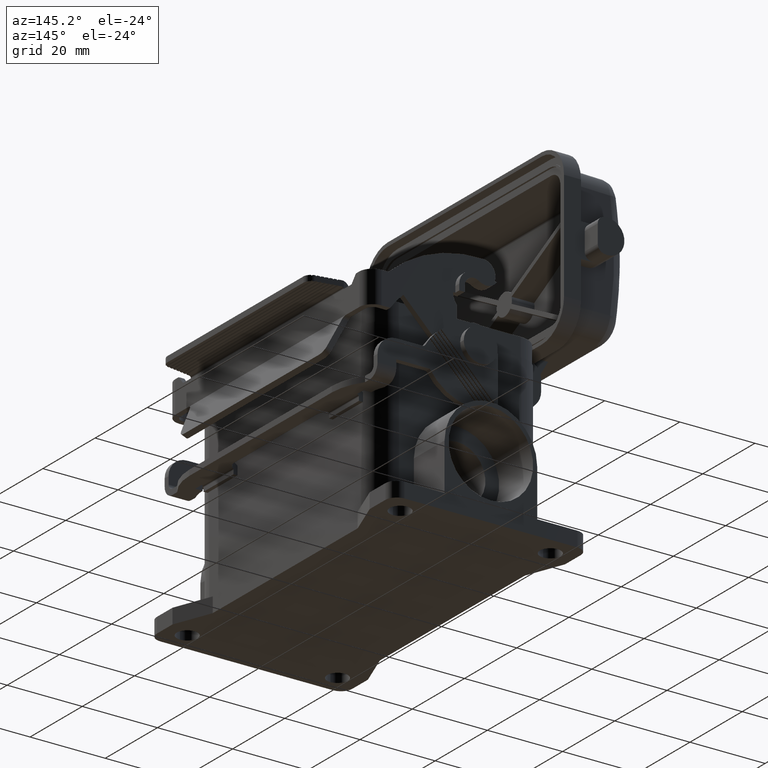
[diagram: clean part render]
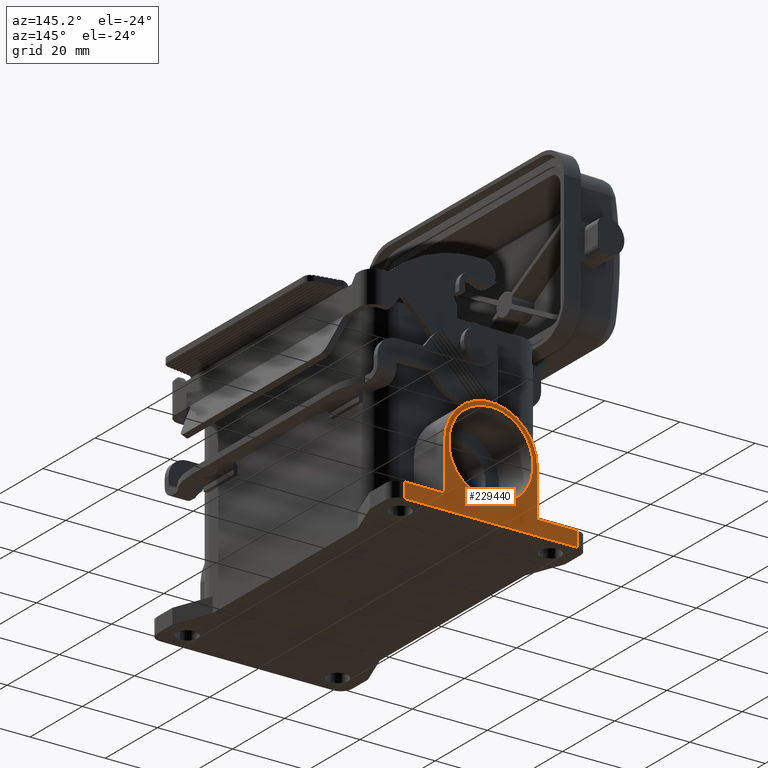
[diagram: same view with one face highlighted and labeled with its STEP entity id]
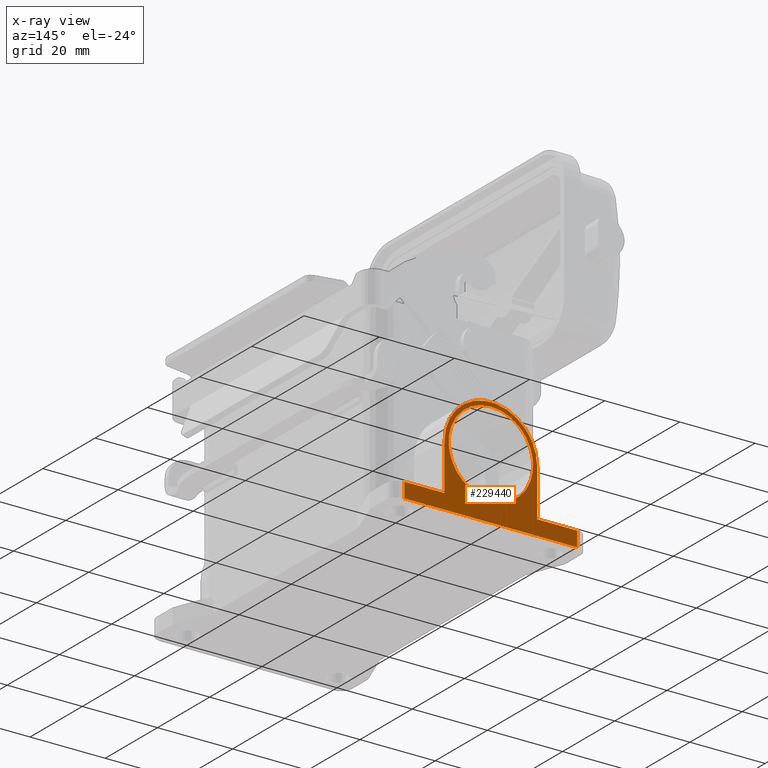
[diagram: x-ray of the same camera — body ghosted, the highlighted face saturated]
A machine part, auxiliary view. The second image highlights one B-rep face of the part: STEP entity #229440.
The next image is the same camera in x-ray: the body ghosted, the highlighted face saturated — about 0% of this face is hidden behind the body in this view.
In plain terms, the highlighted planar face has unit normal (0, 1, 0).
Its self-contained STEP definition (entity closure, byte-faithful):
#28910=CARTESIAN_POINT('',(52.5,23.,-40.));
#28920=VERTEX_POINT('',#28910);
#29100=CARTESIAN_POINT('',(52.5,23.,-44.));
#29110=VERTEX_POINT('',#29100);
#29140=CARTESIAN_POINT('',(52.5,23.,0.));
#29150=DIRECTION('',(0.,-0.,1.));
#29160=VECTOR('',#29150,1.);
#29170=LINE('',#29140,#29160);
#29180=EDGE_CURVE('',#29110,#28920,#29170,.T.);
#46790=CARTESIAN_POINT('',(52.5,-23.,-44.));
#46800=VERTEX_POINT('',#46790);
#46830=CARTESIAN_POINT('',(52.5,26.,-44.));
#46840=DIRECTION('',(0.,-1.,0.));
#46850=VECTOR('',#46840,52.);
#46860=LINE('',#46830,#46850);
#46870=EDGE_CURVE('',#29110,#46800,#46860,.T.);
#178470=CARTESIAN_POINT('',(52.5,-23.,-40.));
#178480=VERTEX_POINT('',#178470);
#178510=CARTESIAN_POINT('',(52.5,-23.,0.));
#178520=DIRECTION('',(-0.,0.,1.));
#178530=VECTOR('',#178520,1.);
#178540=LINE('',#178510,#178530);
#178550=EDGE_CURVE('',#46800,#178480,#178540,.T.);
#228800=CARTESIAN_POINT('',(52.5,26.,-44.));
#228810=DIRECTION('',(1.,-0.,0.));
#228820=DIRECTION('',(0.,0.,-1.));
#228830=AXIS2_PLACEMENT_3D('',#228800,#228810,#228820);
#228840=PLANE('',#228830);
#228850=CARTESIAN_POINT('',(52.5,0.,-27.42));
#228860=DIRECTION('',(1.,0.,0.));
#228870=DIRECTION('',(0.,0.,1.));
#228880=AXIS2_PLACEMENT_3D('',#228850,#228860,#228870);
#228890=CIRCLE('',#228880,11.25);
#228900=CARTESIAN_POINT('',(52.5,0.,-16.17));
#228910=VERTEX_POINT('',#228900);
#228920=CARTESIAN_POINT('',(52.5,-1.37772764904077E-15,-38.67));
#228930=VERTEX_POINT('',#228920);
#228940=EDGE_CURVE('',#228910,#228930,#228890,.T.);
#228950=ORIENTED_EDGE('',*,*,#228940,.F.);
#228960=EDGE_CURVE('',#228930,#228910,#228890,.T.);
#228970=ORIENTED_EDGE('',*,*,#228960,.F.);
#228980=EDGE_LOOP('',(#228970,#228950));
#228990=FACE_BOUND('',#228980,.T.);
#229000=CARTESIAN_POINT('',(52.5,-12.33,-40.));
#229010=DIRECTION('',(0.,-1.,0.));
#229020=VECTOR('',#229010,13.67);
#229030=LINE('',#229000,#229020);
#229040=CARTESIAN_POINT('',(52.5,-12.33,-40.));
#229050=VERTEX_POINT('',#229040);
#229060=EDGE_CURVE('',#229050,#178480,#229030,.T.);
#229070=ORIENTED_EDGE('',*,*,#229060,.T.);
#229080=CARTESIAN_POINT('',(52.5,-12.33,-27.42));
#229090=DIRECTION('',(0.,0.,-1.));
#229100=VECTOR('',#229090,12.58);
#229110=LINE('',#229080,#229100);
#229120=CARTESIAN_POINT('',(52.5,-12.33,-27.42));
#229130=VERTEX_POINT('',#229120);
#229140=EDGE_CURVE('',#229130,#229050,#229110,.T.);
#229150=ORIENTED_EDGE('',*,*,#229140,.T.);
#229160=CARTESIAN_POINT('',(52.5,8.713527E-16,-27.42));
#229170=DIRECTION('',(1.,0.,0.));
#229180=DIRECTION('',(0.,1.,0.));
#229190=AXIS2_PLACEMENT_3D('',#229160,#229170,#229180);
#229200=CIRCLE('',#229190,12.33);
#229210=CARTESIAN_POINT('',(52.5,12.33,-27.42));
#229220=VERTEX_POINT('',#229210);
#229230=EDGE_CURVE('',#229220,#229130,#229200,.T.);
#229240=ORIENTED_EDGE('',*,*,#229230,.T.);
#229250=CARTESIAN_POINT('',(52.5,12.33,-40.));
#229260=DIRECTION('',(0.,0.,1.));
#229270=VECTOR('',#229260,12.58);
#229280=LINE('',#229250,#229270);
#229290=CARTESIAN_POINT('',(52.5,12.33,-40.));
#229300=VERTEX_POINT('',#229290);
#229310=EDGE_CURVE('',#229300,#229220,#229280,.T.);
#229320=ORIENTED_EDGE('',*,*,#229310,.T.);
#229330=CARTESIAN_POINT('',(52.5,26.,-40.));
#229340=DIRECTION('',(0.,-1.,0.));
#229350=VECTOR('',#229340,13.67);
#229360=LINE('',#229330,#229350);
#229370=EDGE_CURVE('',#28920,#229300,#229360,.T.);
#229380=ORIENTED_EDGE('',*,*,#229370,.T.);
#229390=ORIENTED_EDGE('',*,*,#29180,.T.);
#229400=ORIENTED_EDGE('',*,*,#46870,.F.);
#229410=ORIENTED_EDGE('',*,*,#178550,.F.);
#229420=EDGE_LOOP('',(#229410,#229400,#229390,#229380,#229320,#229240,
#229150,#229070));
#229430=FACE_OUTER_BOUND('',#229420,.T.);
#229440=ADVANCED_FACE('',(#228990,#229430),#228840,.T.);